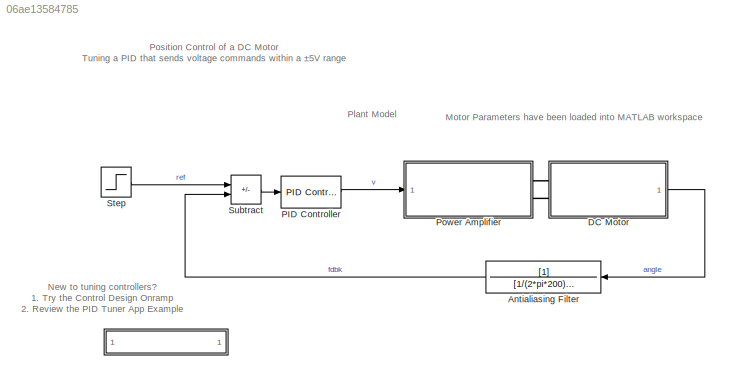
MODEL slx_06ae13584785
KIND model
CONFIG AbsTol = auto
CONFIG EnableMultiTasking = off
CONFIG FixedStep = auto
CONFIG MaxStep = auto
CONFIG MinStep = auto
CONFIG PostLoadFcn = load('dcmtr_params.mat');\n
CONFIG RelTol = 1e-3
CONFIG SampleTimeConstraint = Unconstrained
CONFIG SolverName = ode15s
CONFIG StartTime = 0.0
CONFIG StopTime = 10
BLOCK [SubSystem]    
  OpenFcn = load('dcmtr_params.mat')\nPVal = get_param('dcmtr_cl_init/PID Controller', 'P');\n\nif str2num(PVal) == 1\nset_param('dcmtr_cl_init/PID Controller', 'P', '80')\nset_param('dcmtr_cl_init/PID Controller', 'I', '60')\nset_param('dcmtr_cl_init/PID Controller', 'D', '-2.214')\nset_param('dcmtr_cl_init/PID Controller', 'N', '7')\nset_param(gcs,'SimulationCommand','update');\nmsgbox('Tuned parameters loaded to PI...<+351ch>
  Ports = []
  RequestExecContextInheritance = off
BLOCK [TransferFcn] Antialiasing Filter
  Denominator = [1/(2*pi*200) 1]
BLOCK [SubSystem] DC Motor
  Ports = [0, 1, 0, 0, 0, 2]
  ReferencedSubsystem = dcmtr
  RequestExecContextInheritance = off
BLOCK [Reference] PID Controller  REF=slpidlib/PID Controller
  Ports = [1, 1]
  SourceBlock = slpidlib/PID Controller
  SourceProductBaseCode = SL
  SourceType = PID 1dof
BLOCK [SubSystem] Power Amplifier
  Ports = [1, 0, 0, 0, 0, 0, 2]
  ReferencedSubsystem = powerAmp
  RequestExecContextInheritance = off
BLOCK [Step] Step
  After = pi/3
  AttributesFormatString = %<Name>\n%<After> radians
  SampleTime = 0
  Time = 0
BLOCK [Sum] Subtract
  IconShape = rectangular
  Inputs = +-
  Ports = [2, 1]
ANNOTATION (root): Position Control of a DC Motor Tuning a PID that sends voltage commands within a ± 5V range
ANNOTATION (root): Motor Parameters have been loaded into MATLAB workspace
ANNOTATION (root): New to tuning controllers? 1. Try the Control Design Onramp 2. Review the PID Tuner App Example
ANNOTATION (root): Plant Model
LINE Antialiasing Filter:1 -> Subtract:2
LINE DC Motor:1 -> Antialiasing Filter:1
LINE PID Controller:1 -> Power Amplifier:1
LINE Step:1 -> Subtract:1
LINE Subtract:1 -> PID Controller:1
PLINE DC Motor:LConn1 -- Power Amplifier:RConn1
PLINE DC Motor:LConn2 -- Power Amplifier:RConn2
